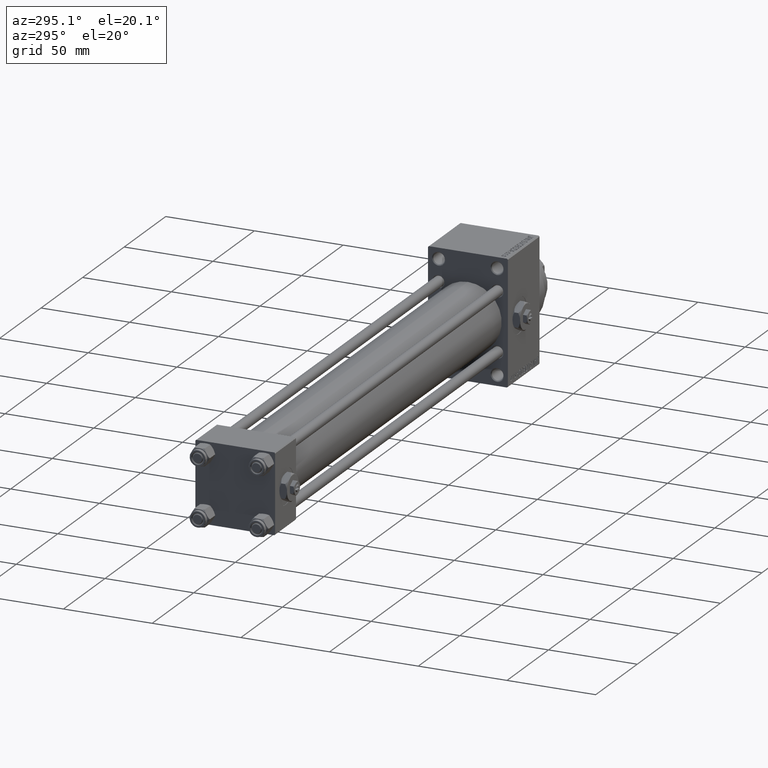
[diagram: clean part render]
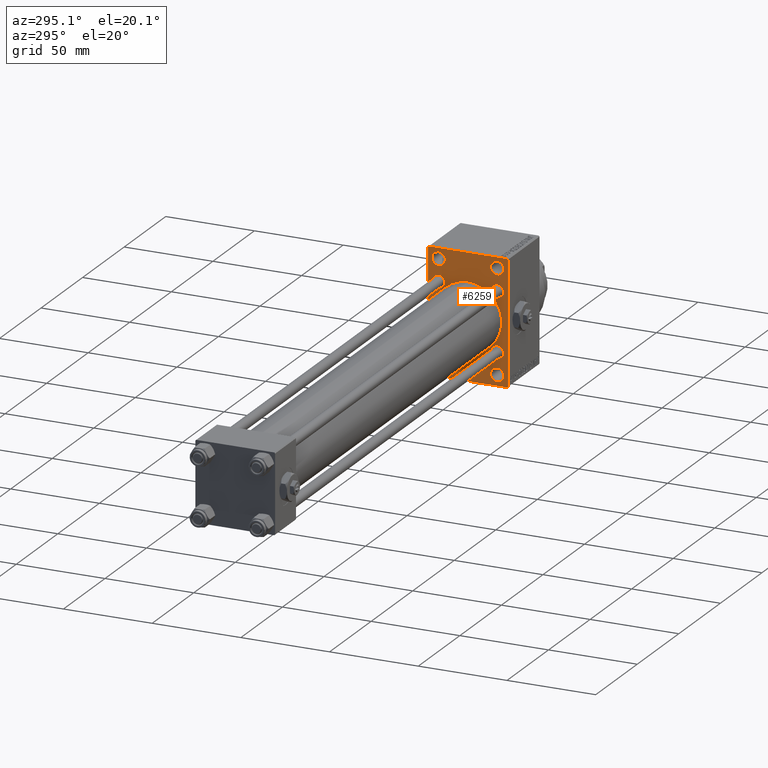
[diagram: same view with one face highlighted and labeled with its STEP entity id]
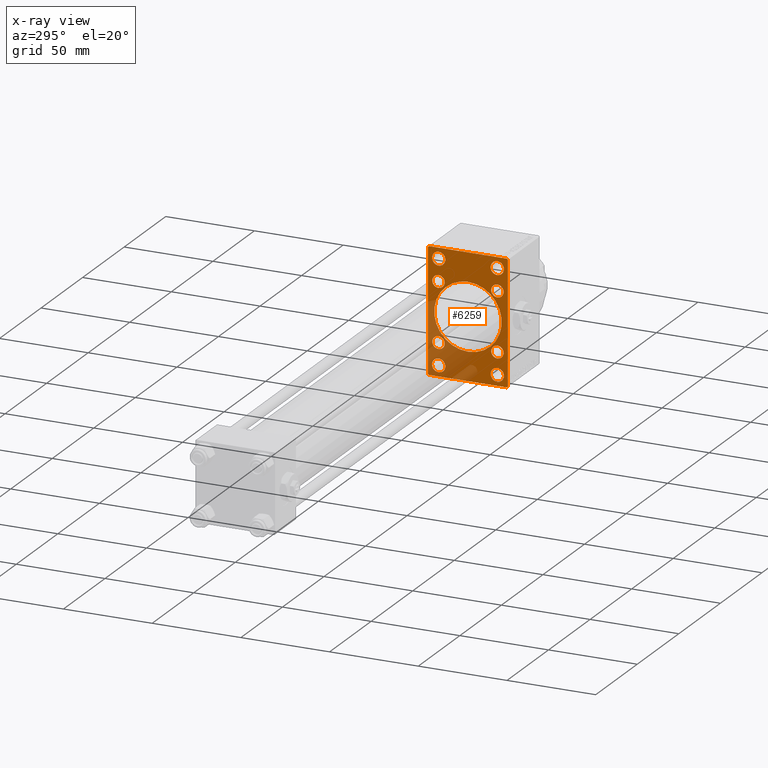
[diagram: x-ray of the same camera — body ghosted, the highlighted face saturated]
A machine part, auxiliary view. The second image highlights one B-rep face of the part: STEP entity #6259.
The next image is the same camera in x-ray: the body ghosted, the highlighted face saturated — about 28% of this face is hidden behind the body in this view.
In plain terms, the highlighted planar face has unit normal (-1, 0, 0).
Its self-contained STEP definition (entity closure, byte-faithful):
#529 = EDGE_CURVE ( 'NONE', #19582, #21345, #28890, .T. ) ;
#908 = DIRECTION ( 'NONE',  ( 1.000000000000000000, 0.000000000000000000, 0.000000000000000000 ) ) ;
#1090 = CIRCLE ( 'NONE', #23309, 3.749999999999923617 ) ;
#1179 = CARTESIAN_POINT ( 'NONE',  ( 280.0000000000000000, -22.50000000000000355, 34.50000000000000000 ) ) ;
#1383 = DIRECTION ( 'NONE',  ( 0.000000000000000000, 0.000000000000000000, -1.000000000000000000 ) ) ;
#1507 = DIRECTION ( 'NONE',  ( 1.000000000000000000, 0.000000000000000000, 0.000000000000000000 ) ) ;
#1551 = FACE_BOUND ( 'NONE', #47532, .T. ) ;
#1657 = ORIENTED_EDGE ( 'NONE', *, *, #21255, .F. ) ;
#1704 = EDGE_CURVE ( 'NONE', #31977, #26658, #21659, .T. ) ;
#1757 = LINE ( 'NONE', #16394, #14611 ) ;
#2239 = ORIENTED_EDGE ( 'NONE', *, *, #46092, .T. ) ;
#2334 = DIRECTION ( 'NONE',  ( 1.000000000000000000, 0.000000000000000000, 0.000000000000000000 ) ) ;
#2566 = DIRECTION ( 'NONE',  ( 0.000000000000000000, 0.000000000000000000, 1.000000000000000000 ) ) ;
#2857 = AXIS2_PLACEMENT_3D ( 'NONE', #39823, #21204, #17978 ) ;
#3108 = ORIENTED_EDGE ( 'NONE', *, *, #41824, .T. ) ;
#3110 = AXIS2_PLACEMENT_3D ( 'NONE', #35807, #47964, #9502 ) ;
#3830 = EDGE_CURVE ( 'NONE', #11955, #32594, #47233, .T. ) ;
#3884 = EDGE_CURVE ( 'NONE', #36219, #8964, #24237, .T. ) ;
#3952 = VECTOR ( 'NONE', #32679, 1000.000000000000000 ) ;
#4655 = CARTESIAN_POINT ( 'NONE',  ( 280.0000000000000000, -22.50000000000000355, -34.50000000000000000 ) ) ;
#4792 = FACE_BOUND ( 'NONE', #13323, .T. ) ;
#4969 = DIRECTION ( 'NONE',  ( 0.000000000000000000, 0.000000000000000000, 1.000000000000000000 ) ) ;
#5130 = AXIS2_PLACEMENT_3D ( 'NONE', #29646, #18726, #22680 ) ;
#5138 = EDGE_CURVE ( 'NONE', #18559, #39601, #36574, .T. ) ;
#5220 = ORIENTED_EDGE ( 'NONE', *, *, #28853, .T. ) ;
#5606 = CARTESIAN_POINT ( 'NONE',  ( 280.0000000000000000, -2.602085213965210642E-15, 0.000000000000000000 ) ) ;
#5888 = AXIS2_PLACEMENT_3D ( 'NONE', #35497, #1507, #24569 ) ;
#6024 = ORIENTED_EDGE ( 'NONE', *, *, #24127, .T. ) ;
#6135 = LINE ( 'NONE', #10589, #3952 ) ;
#6160 = VERTEX_POINT ( 'NONE', #7047 ) ;
#6166 = CARTESIAN_POINT ( 'NONE',  ( 280.0000000000000000, -16.50000000000000000, 29.00000000000000711 ) ) ;
#6259 = ADVANCED_FACE ( 'NONE', ( #16196, #8507, #46715, #1551, #9230, #34569, #16684, #4792, #24354, #31816 ), #11996, .T. ) ;
#6286 = AXIS2_PLACEMENT_3D ( 'NONE', #42618, #12592, #27720 ) ;
#6530 = CARTESIAN_POINT ( 'NONE',  ( 280.0000000000000000, -16.50000000000000000, -32.74999999999991473 ) ) ;
#6550 = DIRECTION ( 'NONE',  ( 0.000000000000000000, 0.000000000000000000, 1.000000000000000000 ) ) ;
#6553 = CARTESIAN_POINT ( 'NONE',  ( 280.0000000000000000, -28.49999999999999645, 28.49999999999999645 ) ) ;
#6827 = CARTESIAN_POINT ( 'NONE',  ( 280.0000000000000000, -16.59999999999999076, 20.10000000000001208 ) ) ;
#7047 = CARTESIAN_POINT ( 'NONE',  ( 280.0000000000000000, 21.99999999999999645, -35.00000000000000000 ) ) ;
#7176 = EDGE_LOOP ( 'NONE', ( #5220, #2239 ) ) ;
#7330 = DIRECTION ( 'NONE',  ( 0.000000000000000000, 0.000000000000000000, 1.000000000000000000 ) ) ;
#7455 = CARTESIAN_POINT ( 'NONE',  ( 280.0000000000000000, 22.49999999999999645, -35.00000000000000000 ) ) ;
#8050 = EDGE_LOOP ( 'NONE', ( #28907, #38228 ) ) ;
#8507 = FACE_BOUND ( 'NONE', #33061, .T. ) ;
#8964 = VERTEX_POINT ( 'NONE', #47528 ) ;
#8986 = CARTESIAN_POINT ( 'NONE',  ( 280.0000000000000000, -2.752562955852396712E-16, -19.00000000000000000 ) ) ;
#9119 = CARTESIAN_POINT ( 'NONE',  ( 280.0000000000000000, -16.50000000000000000, -25.25000000000007105 ) ) ;
#9230 = FACE_BOUND ( 'NONE', #35555, .T. ) ;
#9282 = DIRECTION ( 'NONE',  ( 0.000000000000000000, 0.000000000000000000, 1.000000000000000000 ) ) ;
#9493 = CARTESIAN_POINT ( 'NONE',  ( 280.0000000000000000, -22.00000000000001776, -35.00000000000000000 ) ) ;
#9502 = DIRECTION ( 'NONE',  ( 0.000000000000000000, 0.000000000000000000, 1.000000000000000000 ) ) ;
#9711 = EDGE_CURVE ( 'NONE', #48524, #17256, #28423, .T. ) ;
#9904 = DIRECTION ( 'NONE',  ( 1.000000000000000000, 0.000000000000000000, 0.000000000000000000 ) ) ;
#10150 = CARTESIAN_POINT ( 'NONE',  ( 280.0000000000000000, 16.50000000000000000, -28.99999999999999289 ) ) ;
#10154 = EDGE_CURVE ( 'NONE', #33866, #41055, #23672, .T. ) ;
#10232 = CIRCLE ( 'NONE', #37967, 3.749999999999951150 ) ;
#10589 = CARTESIAN_POINT ( 'NONE',  ( 280.0000000000000000, 28.50000000000061817, 28.49999999999904077 ) ) ;
#10748 = CARTESIAN_POINT ( 'NONE',  ( 280.0000000000000000, -16.50000000000000000, 32.74999999999995737 ) ) ;
#11514 = EDGE_CURVE ( 'NONE', #30992, #15797, #25228, .T. ) ;
#11612 = DIRECTION ( 'NONE',  ( 0.000000000000000000, -1.000000000000000000, 0.000000000000000000 ) ) ;
#11804 = CARTESIAN_POINT ( 'NONE',  ( 280.0000000000000000, 22.49999999999999645, 34.50000000000000000 ) ) ;
#11955 = VERTEX_POINT ( 'NONE', #8986 ) ;
#11996 = PLANE ( 'NONE',  #15648 ) ;
#12146 = DIRECTION ( 'NONE',  ( 1.000000000000000000, 0.000000000000000000, 0.000000000000000000 ) ) ;
#12259 = ORIENTED_EDGE ( 'NONE', *, *, #47777, .T. ) ;
#12378 = DIRECTION ( 'NONE',  ( 0.000000000000000000, 0.000000000000000000, 1.000000000000000000 ) ) ;
#12386 = CIRCLE ( 'NONE', #29823, 3.500000000000006661 ) ;
#12592 = DIRECTION ( 'NONE',  ( 1.000000000000000000, 0.000000000000000000, 0.000000000000000000 ) ) ;
#12656 = DIRECTION ( 'NONE',  ( 1.000000000000000000, 0.000000000000000000, 0.000000000000000000 ) ) ;
#13174 = ORIENTED_EDGE ( 'NONE', *, *, #18898, .F. ) ;
#13323 = EDGE_LOOP ( 'NONE', ( #36805, #25915 ) ) ;
#13512 = DIRECTION ( 'NONE',  ( 1.000000000000000000, 0.000000000000000000, 0.000000000000000000 ) ) ;
#13649 = DIRECTION ( 'NONE',  ( 0.000000000000000000, 0.000000000000000000, 1.000000000000000000 ) ) ;
#13748 = EDGE_CURVE ( 'NONE', #15797, #30992, #18976, .T. ) ;
#13903 = ORIENTED_EDGE ( 'NONE', *, *, #3830, .T. ) ;
#14022 = LINE ( 'NONE', #31219, #34469 ) ;
#14463 = VERTEX_POINT ( 'NONE', #9119 ) ;
#14611 = VECTOR ( 'NONE', #39213, 1000.000000000000000 ) ;
#14637 = EDGE_CURVE ( 'NONE', #32937, #31977, #6135, .T. ) ;
#14737 = CARTESIAN_POINT ( 'NONE',  ( 280.0000000000000000, 16.59999999999999787, 13.09999999999999609 ) ) ;
#15274 = ORIENTED_EDGE ( 'NONE', *, *, #529, .T. ) ;
#15419 = CIRCLE ( 'NONE', #48616, 3.500000000000003109 ) ;
#15648 = AXIS2_PLACEMENT_3D ( 'NONE', #16433, #19681, #31571 ) ;
#15797 = VERTEX_POINT ( 'NONE', #43063 ) ;
#15843 = CIRCLE ( 'NONE', #47544, 19.00000000000000000 ) ;
#16196 = FACE_BOUND ( 'NONE', #7176, .T. ) ;
#16282 = VECTOR ( 'NONE', #44243, 1000.000000000000000 ) ;
#16394 = CARTESIAN_POINT ( 'NONE',  ( 280.0000000000000000, -22.50000000000000355, 35.00000000000000000 ) ) ;
#16433 = CARTESIAN_POINT ( 'NONE',  ( 280.0000000000000000, 0.000000000000000000, 0.000000000000000000 ) ) ;
#16684 = FACE_BOUND ( 'NONE', #23641, .T. ) ;
#16800 = CARTESIAN_POINT ( 'NONE',  ( 280.0000000000000000, -16.50000000000000000, 25.25000000000006040 ) ) ;
#17256 = VERTEX_POINT ( 'NONE', #19368 ) ;
#17372 = DIRECTION ( 'NONE',  ( 0.000000000000000000, 0.000000000000000000, 1.000000000000000000 ) ) ;
#17978 = DIRECTION ( 'NONE',  ( 0.000000000000000000, 0.000000000000000000, 1.000000000000000000 ) ) ;
#18559 = VERTEX_POINT ( 'NONE', #1179 ) ;
#18726 = DIRECTION ( 'NONE',  ( 1.000000000000000000, 0.000000000000000000, 0.000000000000000000 ) ) ;
#18898 = EDGE_CURVE ( 'NONE', #18559, #31660, #1757, .T. ) ;
#18976 = CIRCLE ( 'NONE', #6286, 3.749999999999923617 ) ;
#19025 = EDGE_CURVE ( 'NONE', #41055, #33866, #27269, .T. ) ;
#19368 = CARTESIAN_POINT ( 'NONE',  ( 280.0000000000000000, -16.59999999999999076, -20.10000000000001208 ) ) ;
#19419 = EDGE_CURVE ( 'NONE', #42701, #46093, #27304, .T. ) ;
#19582 = VERTEX_POINT ( 'NONE', #35266 ) ;
#19681 = DIRECTION ( 'NONE',  ( -1.000000000000000000, 0.000000000000000000, -0.000000000000000000 ) ) ;
#20022 = DIRECTION ( 'NONE',  ( 1.000000000000000000, 0.000000000000000000, 0.000000000000000000 ) ) ;
#20059 = CARTESIAN_POINT ( 'NONE',  ( 280.0000000000000000, 16.59999999999999787, 20.10000000000001208 ) ) ;
#20099 = CARTESIAN_POINT ( 'NONE',  ( 280.0000000000000000, 16.50000000000000000, 25.25000000000005684 ) ) ;
#20112 = DIRECTION ( 'NONE',  ( 1.000000000000000000, 0.000000000000000000, 0.000000000000000000 ) ) ;
#20296 = EDGE_CURVE ( 'NONE', #8964, #36219, #15419, .T. ) ;
#21204 = DIRECTION ( 'NONE',  ( 1.000000000000000000, 0.000000000000000000, 0.000000000000000000 ) ) ;
#21255 = EDGE_CURVE ( 'NONE', #32937, #39601, #34432, .T. ) ;
#21345 = VERTEX_POINT ( 'NONE', #35401 ) ;
#21659 = LINE ( 'NONE', #43752, #16282 ) ;
#21946 = VECTOR ( 'NONE', #33089, 1000.000000000000114 ) ;
#22208 = DIRECTION ( 'NONE',  ( 1.000000000000000000, 0.000000000000000000, 0.000000000000000000 ) ) ;
#22361 = EDGE_CURVE ( 'NONE', #49090, #14463, #1090, .T. ) ;
#22397 = CARTESIAN_POINT ( 'NONE',  ( 280.0000000000000000, 16.50000000000000000, 32.74999999999995026 ) ) ;
#22563 = AXIS2_PLACEMENT_3D ( 'NONE', #35882, #20022, #31417 ) ;
#22570 = CARTESIAN_POINT ( 'NONE',  ( 280.0000000000000000, -16.59999999999999076, -13.10000000000000142 ) ) ;
#22680 = DIRECTION ( 'NONE',  ( 0.000000000000000000, 0.000000000000000000, 1.000000000000000000 ) ) ;
#22970 = CARTESIAN_POINT ( 'NONE',  ( 280.0000000000000000, 22.00000000000002132, 35.00000000000000000 ) ) ;
#23088 = VECTOR ( 'NONE', #44679, 1000.000000000000000 ) ;
#23092 = CARTESIAN_POINT ( 'NONE',  ( 280.0000000000000000, -2.602085213965210642E-15, 19.00000000000000000 ) ) ;
#23309 = AXIS2_PLACEMENT_3D ( 'NONE', #36324, #2334, #9282 ) ;
#23641 = EDGE_LOOP ( 'NONE', ( #15274, #41853 ) ) ;
#23672 = CIRCLE ( 'NONE', #3110, 3.500000000000006661 ) ;
#23932 = CARTESIAN_POINT ( 'NONE',  ( 280.0000000000000000, 28.49999999999999645, -28.49999999999999645 ) ) ;
#23947 = CARTESIAN_POINT ( 'NONE',  ( 280.0000000000000000, -2.602085213965210642E-15, 0.000000000000000000 ) ) ;
#24127 = EDGE_CURVE ( 'NONE', #24892, #31660, #14022, .T. ) ;
#24237 = CIRCLE ( 'NONE', #2857, 3.500000000000003109 ) ;
#24354 = FACE_BOUND ( 'NONE', #38878, .T. ) ;
#24569 = DIRECTION ( 'NONE',  ( 0.000000000000000000, 0.000000000000000000, 1.000000000000000000 ) ) ;
#24622 = ORIENTED_EDGE ( 'NONE', *, *, #14637, .T. ) ;
#24892 = VERTEX_POINT ( 'NONE', #9493 ) ;
#25228 = CIRCLE ( 'NONE', #44258, 3.749999999999923617 ) ;
#25739 = DIRECTION ( 'NONE',  ( 0.000000000000000000, 0.000000000000000000, 1.000000000000000000 ) ) ;
#25915 = ORIENTED_EDGE ( 'NONE', *, *, #47911, .T. ) ;
#26658 = VERTEX_POINT ( 'NONE', #30688 ) ;
#27203 = EDGE_CURVE ( 'NONE', #21345, #19582, #12386, .T. ) ;
#27269 = CIRCLE ( 'NONE', #5888, 3.500000000000006661 ) ;
#27304 = CIRCLE ( 'NONE', #22563, 3.749999999999947597 ) ;
#27409 = LINE ( 'NONE', #23932, #41122 ) ;
#27433 = ORIENTED_EDGE ( 'NONE', *, *, #20296, .T. ) ;
#27667 = DIRECTION ( 'NONE',  ( 0.000000000000000000, 0.000000000000000000, -1.000000000000000000 ) ) ;
#27702 = CARTESIAN_POINT ( 'NONE',  ( 280.0000000000000000, -16.59999999999999076, 16.60000000000000853 ) ) ;
#27720 = DIRECTION ( 'NONE',  ( 0.000000000000000000, 0.000000000000000000, 1.000000000000000000 ) ) ;
#28154 = DIRECTION ( 'NONE',  ( 0.000000000000000000, -0.7071067811865279218, 0.7071067811865671127 ) ) ;
#28280 = AXIS2_PLACEMENT_3D ( 'NONE', #6166, #36435, #25739 ) ;
#28423 = CIRCLE ( 'NONE', #45902, 3.500000000000006661 ) ;
#28853 = EDGE_CURVE ( 'NONE', #44548, #45458, #34645, .T. ) ;
#28890 = CIRCLE ( 'NONE', #5130, 3.500000000000006661 ) ;
#28907 = ORIENTED_EDGE ( 'NONE', *, *, #13748, .T. ) ;
#29646 = CARTESIAN_POINT ( 'NONE',  ( 280.0000000000000000, 16.59999999999999787, -16.60000000000000497 ) ) ;
#29823 = AXIS2_PLACEMENT_3D ( 'NONE', #34723, #12146, #12378 ) ;
#30688 = CARTESIAN_POINT ( 'NONE',  ( 280.0000000000000000, 22.49999999999999645, -34.50000000000000000 ) ) ;
#30992 = VERTEX_POINT ( 'NONE', #31366 ) ;
#31051 = ORIENTED_EDGE ( 'NONE', *, *, #10154, .T. ) ;
#31219 = CARTESIAN_POINT ( 'NONE',  ( 280.0000000000000000, -28.50000000000062528, -28.49999999999904432 ) ) ;
#31366 = CARTESIAN_POINT ( 'NONE',  ( 280.0000000000000000, 16.50000000000000000, -32.74999999999991473 ) ) ;
#31417 = DIRECTION ( 'NONE',  ( 0.000000000000000000, 0.000000000000000000, 1.000000000000000000 ) ) ;
#31571 = DIRECTION ( 'NONE',  ( -0.000000000000000000, 0.000000000000000000, 1.000000000000000000 ) ) ;
#31660 = VERTEX_POINT ( 'NONE', #4655 ) ;
#31701 = CIRCLE ( 'NONE', #34075, 3.500000000000006661 ) ;
#31816 = FACE_OUTER_BOUND ( 'NONE', #42762, .T. ) ;
#31977 = VERTEX_POINT ( 'NONE', #11804 ) ;
#32011 = ORIENTED_EDGE ( 'NONE', *, *, #22361, .T. ) ;
#32056 = EDGE_CURVE ( 'NONE', #46093, #42701, #45843, .T. ) ;
#32091 = CARTESIAN_POINT ( 'NONE',  ( 280.0000000000000000, -16.50000000000000000, -28.99999999999999289 ) ) ;
#32594 = VERTEX_POINT ( 'NONE', #23092 ) ;
#32679 = DIRECTION ( 'NONE',  ( 0.000000000000000000, 0.7071067811865279218, -0.7071067811865671127 ) ) ;
#32937 = VERTEX_POINT ( 'NONE', #22970 ) ;
#33061 = EDGE_LOOP ( 'NONE', ( #46760, #32011 ) ) ;
#33089 = DIRECTION ( 'NONE',  ( -0.000000000000000000, 0.7071067811865474617, 0.7071067811865474617 ) ) ;
#33314 = ORIENTED_EDGE ( 'NONE', *, *, #3884, .T. ) ;
#33866 = VERTEX_POINT ( 'NONE', #20059 ) ;
#34075 = AXIS2_PLACEMENT_3D ( 'NONE', #34113, #22208, #7330 ) ;
#34113 = CARTESIAN_POINT ( 'NONE',  ( 280.0000000000000000, -16.59999999999999076, -16.60000000000000853 ) ) ;
#34432 = LINE ( 'NONE', #38638, #46263 ) ;
#34469 = VECTOR ( 'NONE', #28154, 1000.000000000000000 ) ;
#34569 = FACE_BOUND ( 'NONE', #34930, .T. ) ;
#34645 = CIRCLE ( 'NONE', #28280, 3.749999999999951150 ) ;
#34723 = CARTESIAN_POINT ( 'NONE',  ( 280.0000000000000000, 16.59999999999999787, -16.60000000000000497 ) ) ;
#34930 = EDGE_LOOP ( 'NONE', ( #31051, #43427 ) ) ;
#35111 = DIRECTION ( 'NONE',  ( -0.000000000000000000, -0.7071067811865474617, -0.7071067811865474617 ) ) ;
#35154 = DIRECTION ( 'NONE',  ( 1.000000000000000000, 0.000000000000000000, 0.000000000000000000 ) ) ;
#35266 = CARTESIAN_POINT ( 'NONE',  ( 280.0000000000000000, 16.59999999999999787, -13.09999999999999787 ) ) ;
#35401 = CARTESIAN_POINT ( 'NONE',  ( 280.0000000000000000, 16.59999999999999787, -20.10000000000000853 ) ) ;
#35497 = CARTESIAN_POINT ( 'NONE',  ( 280.0000000000000000, 16.59999999999999787, 16.60000000000000497 ) ) ;
#35555 = EDGE_LOOP ( 'NONE', ( #33314, #27433 ) ) ;
#35807 = CARTESIAN_POINT ( 'NONE',  ( 280.0000000000000000, 16.59999999999999787, 16.60000000000000497 ) ) ;
#35882 = CARTESIAN_POINT ( 'NONE',  ( 280.0000000000000000, 16.50000000000000000, 29.00000000000000355 ) ) ;
#36219 = VERTEX_POINT ( 'NONE', #6827 ) ;
#36324 = CARTESIAN_POINT ( 'NONE',  ( 280.0000000000000000, -16.50000000000000000, -28.99999999999999289 ) ) ;
#36424 = ORIENTED_EDGE ( 'NONE', *, *, #5138, .T. ) ;
#36435 = DIRECTION ( 'NONE',  ( 1.000000000000000000, 0.000000000000000000, 0.000000000000000000 ) ) ;
#36574 = LINE ( 'NONE', #6553, #21946 ) ;
#36805 = ORIENTED_EDGE ( 'NONE', *, *, #9711, .T. ) ;
#36979 = LINE ( 'NONE', #7455, #23088 ) ;
#37766 = ORIENTED_EDGE ( 'NONE', *, *, #45799, .T. ) ;
#37967 = AXIS2_PLACEMENT_3D ( 'NONE', #38955, #12656, #4969 ) ;
#38228 = ORIENTED_EDGE ( 'NONE', *, *, #11514, .T. ) ;
#38521 = AXIS2_PLACEMENT_3D ( 'NONE', #23947, #46536, #27667 ) ;
#38638 = CARTESIAN_POINT ( 'NONE',  ( 280.0000000000000000, 22.49999999999999645, 35.00000000000000000 ) ) ;
#38878 = EDGE_LOOP ( 'NONE', ( #12259, #13903 ) ) ;
#38955 = CARTESIAN_POINT ( 'NONE',  ( 280.0000000000000000, -16.50000000000000000, 29.00000000000000711 ) ) ;
#39213 = DIRECTION ( 'NONE',  ( 0.000000000000000000, 0.000000000000000000, -1.000000000000000000 ) ) ;
#39601 = VERTEX_POINT ( 'NONE', #42855 ) ;
#39823 = CARTESIAN_POINT ( 'NONE',  ( 280.0000000000000000, -16.59999999999999076, 16.60000000000000853 ) ) ;
#39949 = CARTESIAN_POINT ( 'NONE',  ( 280.0000000000000000, -16.59999999999999076, -16.60000000000000853 ) ) ;
#40281 = DIRECTION ( 'NONE',  ( 1.000000000000000000, 0.000000000000000000, 0.000000000000000000 ) ) ;
#40288 = ORIENTED_EDGE ( 'NONE', *, *, #32056, .T. ) ;
#41055 = VERTEX_POINT ( 'NONE', #14737 ) ;
#41122 = VECTOR ( 'NONE', #35111, 1000.000000000000114 ) ;
#41434 = ORIENTED_EDGE ( 'NONE', *, *, #1704, .T. ) ;
#41824 = EDGE_CURVE ( 'NONE', #6160, #24892, #36979, .T. ) ;
#41853 = ORIENTED_EDGE ( 'NONE', *, *, #27203, .T. ) ;
#42433 = EDGE_CURVE ( 'NONE', #14463, #49090, #44524, .T. ) ;
#42600 = DIRECTION ( 'NONE',  ( 0.000000000000000000, 0.000000000000000000, 1.000000000000000000 ) ) ;
#42618 = CARTESIAN_POINT ( 'NONE',  ( 280.0000000000000000, 16.50000000000000000, -28.99999999999999289 ) ) ;
#42701 = VERTEX_POINT ( 'NONE', #22397 ) ;
#42762 = EDGE_LOOP ( 'NONE', ( #3108, #6024, #13174, #36424, #1657, #24622, #41434, #37766 ) ) ;
#42855 = CARTESIAN_POINT ( 'NONE',  ( 280.0000000000000000, -21.99999999999998934, 35.00000000000000000 ) ) ;
#43063 = CARTESIAN_POINT ( 'NONE',  ( 280.0000000000000000, 16.50000000000000000, -25.25000000000007105 ) ) ;
#43427 = ORIENTED_EDGE ( 'NONE', *, *, #19025, .T. ) ;
#43752 = CARTESIAN_POINT ( 'NONE',  ( 280.0000000000000000, 22.49999999999999645, 35.00000000000000000 ) ) ;
#44243 = DIRECTION ( 'NONE',  ( 0.000000000000000000, 0.000000000000000000, -1.000000000000000000 ) ) ;
#44258 = AXIS2_PLACEMENT_3D ( 'NONE', #10150, #9904, #13649 ) ;
#44301 = ORIENTED_EDGE ( 'NONE', *, *, #19419, .T. ) ;
#44524 = CIRCLE ( 'NONE', #45305, 3.749999999999923617 ) ;
#44548 = VERTEX_POINT ( 'NONE', #10748 ) ;
#44679 = DIRECTION ( 'NONE',  ( 0.000000000000000000, -1.000000000000000000, 0.000000000000000000 ) ) ;
#45305 = AXIS2_PLACEMENT_3D ( 'NONE', #32091, #40281, #2566 ) ;
#45458 = VERTEX_POINT ( 'NONE', #16800 ) ;
#45799 = EDGE_CURVE ( 'NONE', #26658, #6160, #27409, .T. ) ;
#45843 = CIRCLE ( 'NONE', #49032, 3.749999999999947597 ) ;
#45902 = AXIS2_PLACEMENT_3D ( 'NONE', #39949, #20112, #17372 ) ;
#46092 = EDGE_CURVE ( 'NONE', #45458, #44548, #10232, .T. ) ;
#46093 = VERTEX_POINT ( 'NONE', #20099 ) ;
#46263 = VECTOR ( 'NONE', #11612, 1000.000000000000000 ) ;
#46536 = DIRECTION ( 'NONE',  ( 1.000000000000000000, 0.000000000000000000, 0.000000000000000000 ) ) ;
#46715 = FACE_BOUND ( 'NONE', #8050, .T. ) ;
#46760 = ORIENTED_EDGE ( 'NONE', *, *, #42433, .T. ) ;
#47233 = CIRCLE ( 'NONE', #38521, 19.00000000000000000 ) ;
#47497 = CARTESIAN_POINT ( 'NONE',  ( 280.0000000000000000, 16.50000000000000000, 29.00000000000000355 ) ) ;
#47528 = CARTESIAN_POINT ( 'NONE',  ( 280.0000000000000000, -16.59999999999999076, 13.10000000000000142 ) ) ;
#47532 = EDGE_LOOP ( 'NONE', ( #44301, #40288 ) ) ;
#47544 = AXIS2_PLACEMENT_3D ( 'NONE', #5606, #908, #1383 ) ;
#47777 = EDGE_CURVE ( 'NONE', #32594, #11955, #15843, .T. ) ;
#47911 = EDGE_CURVE ( 'NONE', #17256, #48524, #31701, .T. ) ;
#47964 = DIRECTION ( 'NONE',  ( 1.000000000000000000, 0.000000000000000000, 0.000000000000000000 ) ) ;
#48524 = VERTEX_POINT ( 'NONE', #22570 ) ;
#48616 = AXIS2_PLACEMENT_3D ( 'NONE', #27702, #35154, #42600 ) ;
#49032 = AXIS2_PLACEMENT_3D ( 'NONE', #47497, #13512, #6550 ) ;
#49090 = VERTEX_POINT ( 'NONE', #6530 ) ;